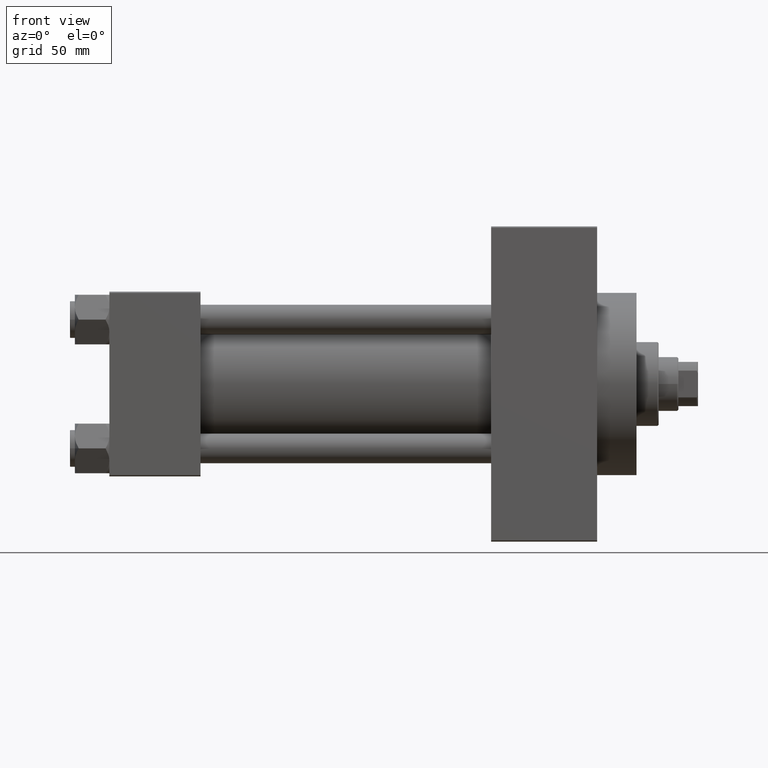
[diagram: clean part render]
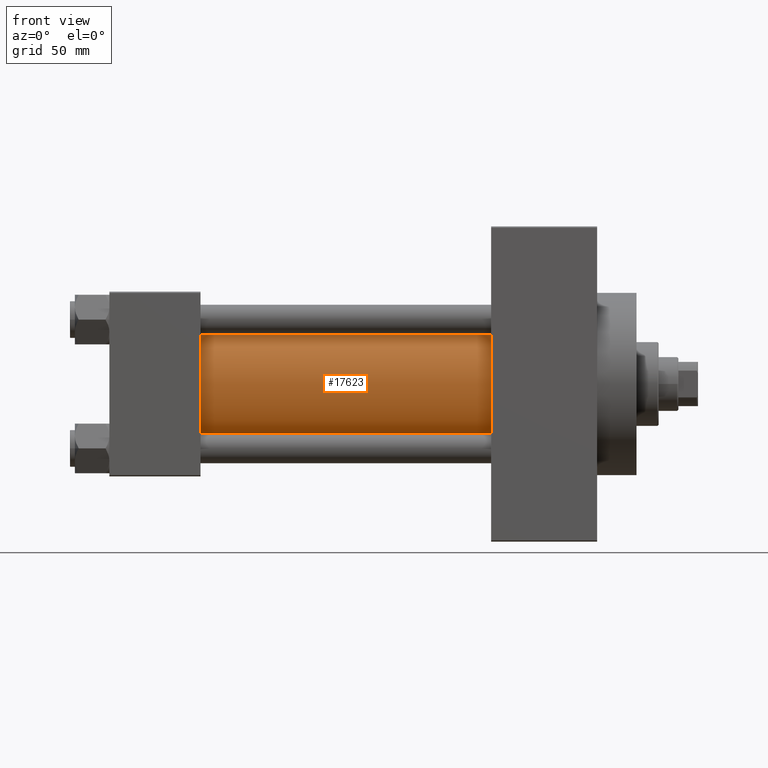
[diagram: same view with one face highlighted and labeled with its STEP entity id]
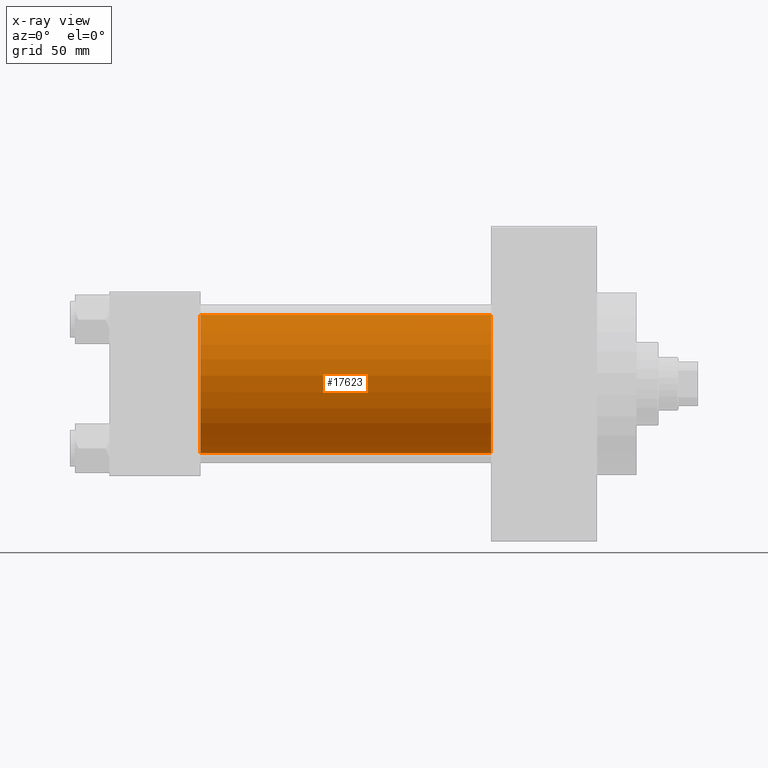
[diagram: x-ray of the same camera — body ghosted, the highlighted face saturated]
A machine part, front view. The second image highlights one B-rep face of the part: STEP entity #17623.
The next image is the same camera in x-ray: the body ghosted, the highlighted face saturated — about 0% of this face is hidden behind the body in this view.
In plain terms, the highlighted cylindrical surface (partial cylindrical patch) has radius 28 mm, axis along (-1, -0, -0).
Its self-contained STEP definition (entity closure, byte-faithful):
#105 = DIRECTION ( 'NONE',  ( 0.000000000000000000, 0.000000000000000000, -1.000000000000000000 ) ) ;
#692 = AXIS2_PLACEMENT_3D ( 'NONE', #27881, #8362, #23644 ) ;
#2649 = VERTEX_POINT ( 'NONE', #43897 ) ;
#3354 = AXIS2_PLACEMENT_3D ( 'NONE', #43558, #24564, #48307 ) ;
#4721 = DIRECTION ( 'NONE',  ( -1.000000000000000000, -0.000000000000000000, -0.000000000000000000 ) ) ;
#5202 = EDGE_CURVE ( 'NONE', #2649, #16628, #27758, .T. ) ;
#5560 = CARTESIAN_POINT ( 'NONE',  ( 155.0000000000000000, -2.602085213965210642E-15, 28.00000000000000000 ) ) ;
#5781 = EDGE_CURVE ( 'NONE', #29504, #16628, #29456, .T. ) ;
#8362 = DIRECTION ( 'NONE',  ( 1.000000000000000000, -0.000000000000000000, 0.000000000000000000 ) ) ;
#9694 = CIRCLE ( 'NONE', #28066, 28.00000000000000000 ) ;
#10245 = CARTESIAN_POINT ( 'NONE',  ( 37.00000000000000711, -2.602085213965210642E-15, 28.00000000000000000 ) ) ;
#10840 = VERTEX_POINT ( 'NONE', #5560 ) ;
#12799 = CARTESIAN_POINT ( 'NONE',  ( 37.00000000000000711, 8.269258236473784371E-16, -28.00000000000000000 ) ) ;
#15150 = EDGE_CURVE ( 'NONE', #10840, #2649, #9694, .T. ) ;
#15475 = CARTESIAN_POINT ( 'NONE',  ( 155.0000000000000000, -2.602085213965210642E-15, 28.00000000000000000 ) ) ;
#16628 = VERTEX_POINT ( 'NONE', #12799 ) ;
#17450 = ORIENTED_EDGE ( 'NONE', *, *, #5202, .F. ) ;
#17623 = ADVANCED_FACE ( 'NONE', ( #28319 ), #36775, .T. ) ;
#19038 = VECTOR ( 'NONE', #4721, 1000.000000000000000 ) ;
#20021 = EDGE_LOOP ( 'NONE', ( #17450, #28399, #31220, #28301 ) ) ;
#23644 = DIRECTION ( 'NONE',  ( 0.000000000000000000, 0.000000000000000000, 1.000000000000000000 ) ) ;
#23759 = CARTESIAN_POINT ( 'NONE',  ( 155.0000000000000000, 8.269258236473784371E-16, -28.00000000000000000 ) ) ;
#24564 = DIRECTION ( 'NONE',  ( -1.000000000000000000, -0.000000000000000000, -0.000000000000000000 ) ) ;
#27392 = EDGE_CURVE ( 'NONE', #10840, #29504, #34235, .T. ) ;
#27758 = LINE ( 'NONE', #23759, #19038 ) ;
#27881 = CARTESIAN_POINT ( 'NONE',  ( 37.00000000000000711, -2.602085213965210642E-15, 0.000000000000000000 ) ) ;
#28066 = AXIS2_PLACEMENT_3D ( 'NONE', #46870, #34866, #105 ) ;
#28301 = ORIENTED_EDGE ( 'NONE', *, *, #5781, .T. ) ;
#28319 = FACE_OUTER_BOUND ( 'NONE', #20021, .T. ) ;
#28399 = ORIENTED_EDGE ( 'NONE', *, *, #15150, .F. ) ;
#29456 = CIRCLE ( 'NONE', #692, 28.00000000000000000 ) ;
#29504 = VERTEX_POINT ( 'NONE', #10245 ) ;
#30502 = DIRECTION ( 'NONE',  ( -1.000000000000000000, -0.000000000000000000, -0.000000000000000000 ) ) ;
#30773 = VECTOR ( 'NONE', #30502, 1000.000000000000000 ) ;
#31220 = ORIENTED_EDGE ( 'NONE', *, *, #27392, .T. ) ;
#34235 = LINE ( 'NONE', #15475, #30773 ) ;
#34866 = DIRECTION ( 'NONE',  ( 1.000000000000000000, 0.000000000000000000, 0.000000000000000000 ) ) ;
#36775 = CYLINDRICAL_SURFACE ( 'NONE', #3354, 28.00000000000000000 ) ;
#43558 = CARTESIAN_POINT ( 'NONE',  ( 155.0000000000000000, -2.602085213965210642E-15, 0.000000000000000000 ) ) ;
#43897 = CARTESIAN_POINT ( 'NONE',  ( 155.0000000000000000, 8.269258236473784371E-16, -28.00000000000000000 ) ) ;
#46870 = CARTESIAN_POINT ( 'NONE',  ( 155.0000000000000000, -2.602085213965210642E-15, 0.000000000000000000 ) ) ;
#48307 = DIRECTION ( 'NONE',  ( 0.000000000000000000, 0.000000000000000000, 1.000000000000000000 ) ) ;